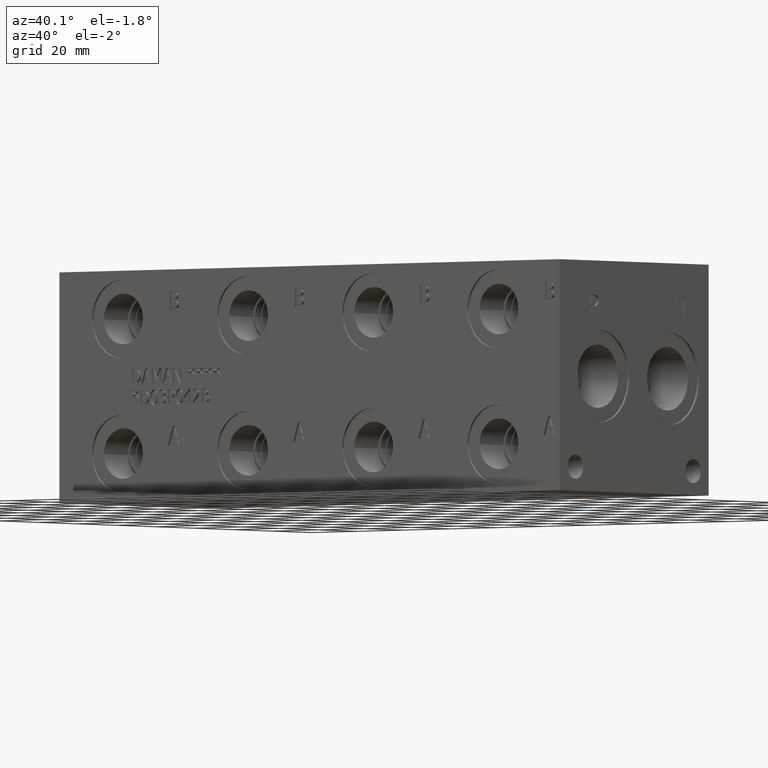
[diagram: clean part render]
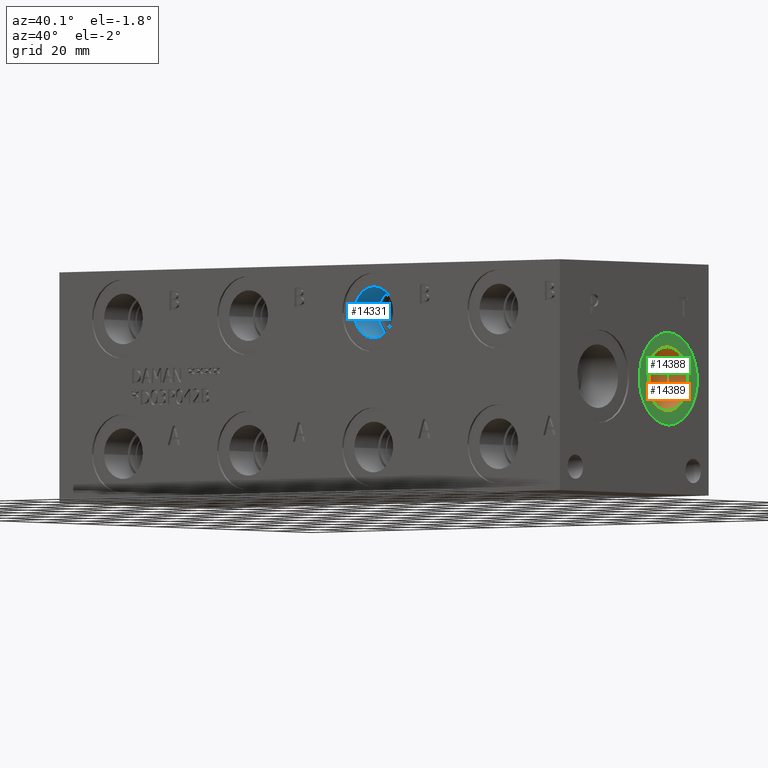
[diagram: same view with three faces highlighted in distinct colors, each labeled with its STEP entity id]
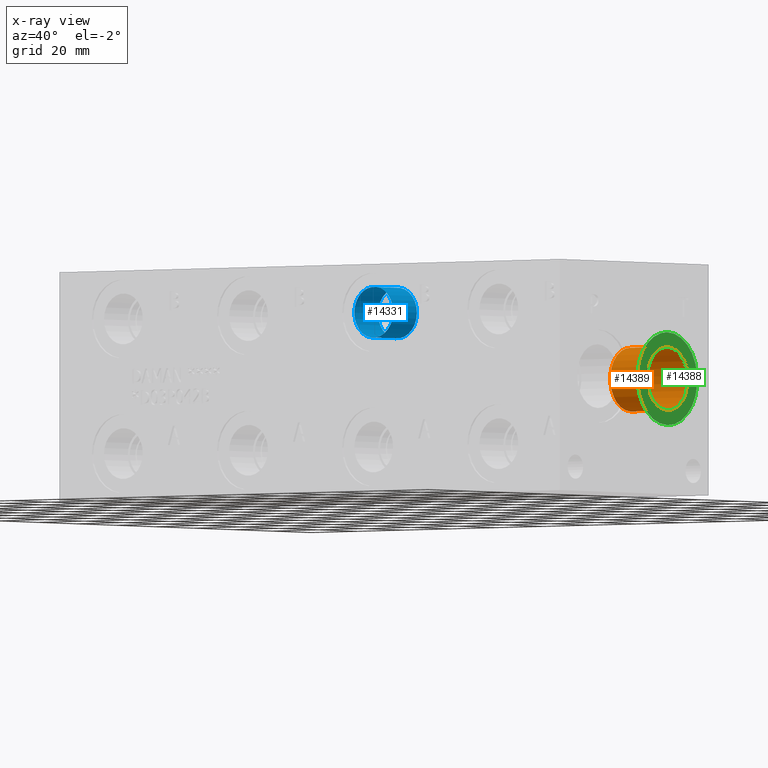
[diagram: x-ray of the same camera — body ghosted, the three highlighted faces saturated]
A machine part, auxiliary view with three faces highlighted in distinct colors.
The next image is the same camera in x-ray (body ghosted, the three faces saturated) — at least one of them is partly hidden behind the body in this view.
Their STEP definitions:

[orange] entity #14389 — the highlighted cylindrical surface (bore or boss wall) has radius 10.5283 mm, axis along (-1, 0, 0).
#120=CYLINDRICAL_SURFACE('',#15156,10.5283);
#352=CIRCLE('',#15154,10.5283);
#353=CIRCLE('',#15155,10.5283);
#354=CIRCLE('',#15157,10.5283);
#355=CIRCLE('',#15158,10.5283);
#1843=FACE_OUTER_BOUND('',#2683,.T.);
#2683=EDGE_LOOP('',(#12130,#12131,#12132,#12133,#12134,#12135));
#4044=LINE('',#24325,#5319);
#5319=VECTOR('',#17928,10.5283);
#6562=VERTEX_POINT('',#24319);
#6563=VERTEX_POINT('',#24320);
#6564=VERTEX_POINT('',#24324);
#6565=VERTEX_POINT('',#24326);
#8498=EDGE_CURVE('',#6562,#6563,#352,.T.);
#8499=EDGE_CURVE('',#6563,#6562,#353,.T.);
#8500=EDGE_CURVE('',#6563,#6564,#4044,.T.);
#8501=EDGE_CURVE('',#6564,#6565,#354,.T.);
#8502=EDGE_CURVE('',#6565,#6564,#355,.T.);
#12130=ORIENTED_EDGE('',*,*,#8498,.F.);
#12131=ORIENTED_EDGE('',*,*,#8499,.F.);
#12132=ORIENTED_EDGE('',*,*,#8500,.T.);
#12133=ORIENTED_EDGE('',*,*,#8501,.T.);
#12134=ORIENTED_EDGE('',*,*,#8502,.T.);
#12135=ORIENTED_EDGE('',*,*,#8500,.F.);
#14389=ADVANCED_FACE('',(#1843),#120,.F.);
#15154=AXIS2_PLACEMENT_3D('',#24321,#17922,#17923);
#15155=AXIS2_PLACEMENT_3D('',#24322,#17924,#17925);
#15156=AXIS2_PLACEMENT_3D('',#24323,#17926,#17927);
#15157=AXIS2_PLACEMENT_3D('',#24327,#17929,#17930);
#15158=AXIS2_PLACEMENT_3D('',#24328,#17931,#17932);
#17922=DIRECTION('center_axis',(-1.,0.,0.));
#17923=DIRECTION('ref_axis',(0.,0.,1.));
#17924=DIRECTION('center_axis',(-1.,0.,0.));
#17925=DIRECTION('ref_axis',(0.,0.,1.));
#17926=DIRECTION('center_axis',(-1.,0.,0.));
#17927=DIRECTION('ref_axis',(0.,0.,-1.));
#17928=DIRECTION('',(-1.,0.,0.));
#17929=DIRECTION('center_axis',(-1.,0.,0.));
#17930=DIRECTION('ref_axis',(0.,0.,1.));
#17931=DIRECTION('center_axis',(-1.,0.,0.));
#17932=DIRECTION('ref_axis',(0.,0.,1.));
#24319=CARTESIAN_POINT('',(215.1126,55.9562,27.5717));
#24320=CARTESIAN_POINT('',(215.1126,55.9562,48.6283));
#24321=CARTESIAN_POINT('Origin',(215.1126,55.9562,38.1));
#24322=CARTESIAN_POINT('Origin',(215.1126,55.9562,38.1));
#24323=CARTESIAN_POINT('Origin',(207.2132,55.9562,38.1));
#24324=CARTESIAN_POINT('',(199.3138,55.9562,48.6283));
#24325=CARTESIAN_POINT('',(207.2132,55.9562,48.6283));
#24326=CARTESIAN_POINT('',(199.3138,55.9562,27.5717));
#24327=CARTESIAN_POINT('Origin',(199.3138,55.9562,38.1));
#24328=CARTESIAN_POINT('Origin',(199.3138,55.9562,38.1));

[blue] entity #14331 — the highlighted cylindrical surface (bore or boss wall) has radius 8.382 mm, axis along (0, 1, 0).
#91=CYLINDRICAL_SURFACE('',#15010,8.38200000000001);
#264=CIRCLE('',#15008,8.38200000000001);
#265=CIRCLE('',#15009,8.38200000000001);
#266=CIRCLE('',#15011,8.38200000000001);
#267=CIRCLE('',#15012,8.38200000000001);
#1785=FACE_OUTER_BOUND('',#2613,.T.);
#2613=EDGE_LOOP('',(#11846,#11847,#11848,#11849,#11850,#11851));
#3998=LINE('',#24033,#5273);
#5273=VECTOR('',#17590,8.38200000000001);
#6462=VERTEX_POINT('',#24027);
#6463=VERTEX_POINT('',#24028);
#6464=VERTEX_POINT('',#24032);
#6465=VERTEX_POINT('',#24034);
#8364=EDGE_CURVE('',#6462,#6463,#264,.T.);
#8365=EDGE_CURVE('',#6463,#6462,#265,.T.);
#8366=EDGE_CURVE('',#6463,#6464,#3998,.T.);
#8367=EDGE_CURVE('',#6464,#6465,#266,.T.);
#8368=EDGE_CURVE('',#6465,#6464,#267,.T.);
#11846=ORIENTED_EDGE('',*,*,#8364,.F.);
#11847=ORIENTED_EDGE('',*,*,#8365,.F.);
#11848=ORIENTED_EDGE('',*,*,#8366,.T.);
#11849=ORIENTED_EDGE('',*,*,#8367,.T.);
#11850=ORIENTED_EDGE('',*,*,#8368,.T.);
#11851=ORIENTED_EDGE('',*,*,#8366,.F.);
#14331=ADVANCED_FACE('',(#1785),#91,.F.);
#15008=AXIS2_PLACEMENT_3D('',#24029,#17584,#17585);
#15009=AXIS2_PLACEMENT_3D('',#24030,#17586,#17587);
#15010=AXIS2_PLACEMENT_3D('',#24031,#17588,#17589);
#15011=AXIS2_PLACEMENT_3D('',#24035,#17591,#17592);
#15012=AXIS2_PLACEMENT_3D('',#24036,#17593,#17594);
#17584=DIRECTION('center_axis',(0.,1.,0.));
#17585=DIRECTION('ref_axis',(1.,0.,0.));
#17586=DIRECTION('center_axis',(0.,1.,0.));
#17587=DIRECTION('ref_axis',(1.,0.,0.));
#17588=DIRECTION('center_axis',(0.,1.,0.));
#17589=DIRECTION('ref_axis',(1.,0.,0.));
#17590=DIRECTION('',(0.,1.,0.));
#17591=DIRECTION('center_axis',(0.,1.,0.));
#17592=DIRECTION('ref_axis',(1.,0.,0.));
#17593=DIRECTION('center_axis',(0.,1.,0.));
#17594=DIRECTION('ref_axis',(1.,0.,0.));
#24027=CARTESIAN_POINT('',(143.3068,0.7874,60.325));
#24028=CARTESIAN_POINT('',(126.5428,0.7874,60.325));
#24029=CARTESIAN_POINT('Origin',(134.9248,0.7874,60.325));
#24030=CARTESIAN_POINT('Origin',(134.9248,0.7874,60.325));
#24031=CARTESIAN_POINT('Origin',(134.9248,6.8834,60.325));
#24032=CARTESIAN_POINT('',(126.5428,12.9794,60.325));
#24033=CARTESIAN_POINT('',(126.5428,6.8834,60.325));
#24034=CARTESIAN_POINT('',(143.3068,12.9794,60.325));
#24035=CARTESIAN_POINT('Origin',(134.9248,12.9794,60.325));
#24036=CARTESIAN_POINT('Origin',(134.9248,12.9794,60.325));

[green] entity #14388 — the highlighted planar face has unit normal (-1, 0, 0).
#350=CIRCLE('',#15151,15.3416);
#351=CIRCLE('',#15152,15.3416);
#352=CIRCLE('',#15154,10.5283);
#353=CIRCLE('',#15155,10.5283);
#680=FACE_BOUND('',#2682,.T.);
#1842=FACE_OUTER_BOUND('',#2681,.T.);
#2681=EDGE_LOOP('',(#12126,#12127));
#2682=EDGE_LOOP('',(#12128,#12129));
#6560=VERTEX_POINT('',#24313);
#6561=VERTEX_POINT('',#24315);
#6562=VERTEX_POINT('',#24319);
#6563=VERTEX_POINT('',#24320);
#8496=EDGE_CURVE('',#6560,#6561,#350,.T.);
#8497=EDGE_CURVE('',#6561,#6560,#351,.T.);
#8498=EDGE_CURVE('',#6562,#6563,#352,.T.);
#8499=EDGE_CURVE('',#6563,#6562,#353,.T.);
#12126=ORIENTED_EDGE('',*,*,#8497,.F.);
#12127=ORIENTED_EDGE('',*,*,#8496,.F.);
#12128=ORIENTED_EDGE('',*,*,#8498,.T.);
#12129=ORIENTED_EDGE('',*,*,#8499,.T.);
#13244=PLANE('',#15153);
#14388=ADVANCED_FACE('',(#1842,#680),#13244,.F.);
#15151=AXIS2_PLACEMENT_3D('',#24316,#17916,#17917);
#15152=AXIS2_PLACEMENT_3D('',#24317,#17918,#17919);
#15153=AXIS2_PLACEMENT_3D('',#24318,#17920,#17921);
#15154=AXIS2_PLACEMENT_3D('',#24321,#17922,#17923);
#15155=AXIS2_PLACEMENT_3D('',#24322,#17924,#17925);
#17916=DIRECTION('center_axis',(-1.,0.,0.));
#17917=DIRECTION('ref_axis',(0.,0.,1.));
#17918=DIRECTION('center_axis',(-1.,0.,0.));
#17919=DIRECTION('ref_axis',(0.,0.,1.));
#17920=DIRECTION('center_axis',(-1.,0.,0.));
#17921=DIRECTION('ref_axis',(0.,0.,1.));
#17922=DIRECTION('center_axis',(-1.,0.,0.));
#17923=DIRECTION('ref_axis',(0.,0.,1.));
#17924=DIRECTION('center_axis',(-1.,0.,0.));
#17925=DIRECTION('ref_axis',(0.,0.,1.));
#24313=CARTESIAN_POINT('',(215.1126,55.9562,53.4416));
#24315=CARTESIAN_POINT('',(215.1126,55.9562,22.7584));
#24316=CARTESIAN_POINT('Origin',(215.1126,55.9562,38.1));
#24317=CARTESIAN_POINT('Origin',(215.1126,55.9562,38.1));
#24318=CARTESIAN_POINT('Origin',(215.1126,55.9562,27.5717));
#24319=CARTESIAN_POINT('',(215.1126,55.9562,27.5717));
#24320=CARTESIAN_POINT('',(215.1126,55.9562,48.6283));
#24321=CARTESIAN_POINT('Origin',(215.1126,55.9562,38.1));
#24322=CARTESIAN_POINT('Origin',(215.1126,55.9562,38.1));